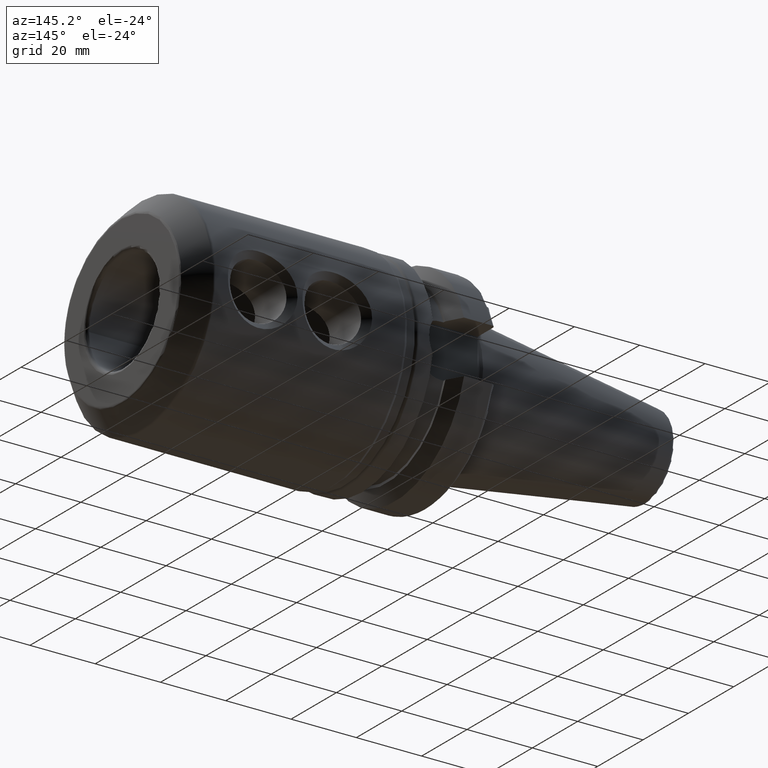
[diagram: clean part render]
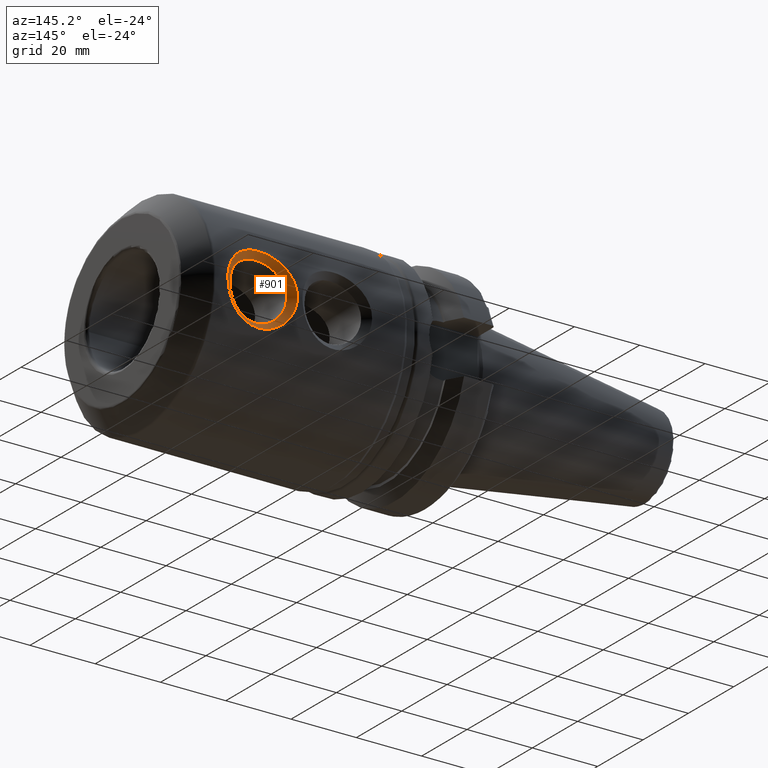
[diagram: same view with one face highlighted and labeled with its STEP entity id]
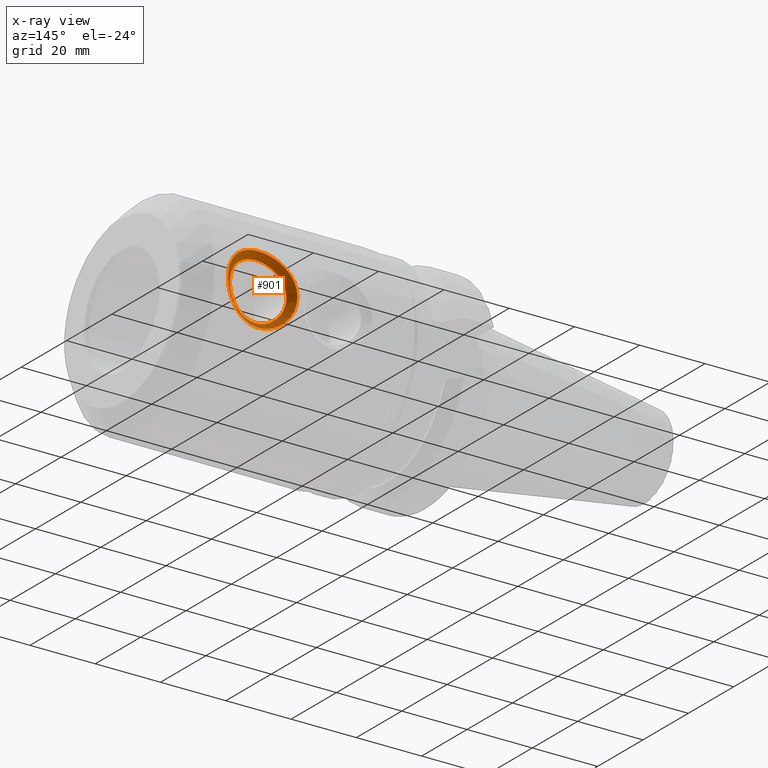
[diagram: x-ray of the same camera — body ghosted, the highlighted face saturated]
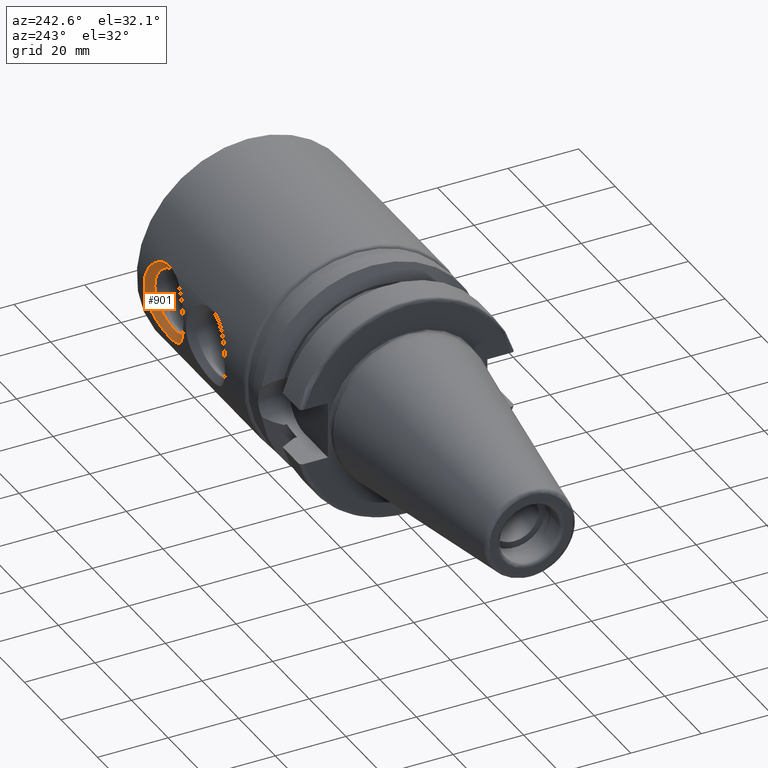
[diagram: same view with one face highlighted and labeled with its STEP entity id]
A machine part, auxiliary view. The second image highlights one B-rep face of the part: STEP entity #901.
The next image is the same camera in x-ray: the body ghosted, the highlighted face saturated — about 0% of this face is hidden behind the body in this view.
A second angle (auxiliary view) of the same face is appended — the face is thin or edge-on in the first view.
In plain terms, the highlighted face is a freeform B-spline surface patch.
Its self-contained STEP definition (entity closure, byte-faithful):
#19=B_SPLINE_SURFACE_WITH_KNOTS('',3,3,((#1586,#1587,#1588,#1589,#1590,
#1591,#1592,#1593,#1594,#1595,#1596,#1597,#1598,#1599,#1600,#1601,#1602,
#1603,#1604,#1605,#1606,#1607,#1608,#1609,#1610,#1611,#1612,#1613),(#1614,
#1615,#1616,#1617,#1618,#1619,#1620,#1621,#1622,#1623,#1624,#1625,#1626,
#1627,#1628,#1629,#1630,#1631,#1632,#1633,#1634,#1635,#1636,#1637,#1638,
#1639,#1640,#1641),(#1642,#1643,#1644,#1645,#1646,#1647,#1648,#1649,#1650,
#1651,#1652,#1653,#1654,#1655,#1656,#1657,#1658,#1659,#1660,#1661,#1662,
#1663,#1664,#1665,#1666,#1667,#1668,#1669),(#1670,#1671,#1672,#1673,#1674,
#1675,#1676,#1677,#1678,#1679,#1680,#1681,#1682,#1683,#1684,#1685,#1686,
#1687,#1688,#1689,#1690,#1691,#1692,#1693,#1694,#1695,#1696,#1697)),
 .UNSPECIFIED.,.F.,.T.,.F.,(4,4),(4,1,1,1,1,1,1,1,1,1,1,1,1,1,1,1,1,1,1,
1,1,1,1,1,1,4),(0.,1.),(3.93676515653178,4.12423016398568,4.31169517143957,
4.49916017889347,4.68662518634736,4.87409019380126,5.06155520125515,5.43648521616294,
5.6864385594348,5.81141523107073,5.93639190270666,6.18634524597852,6.43629858925038,
6.68625193252224,6.9362052757941,7.18615861906596,7.31113529070189,7.43611196233782,
7.68606530560967,7.8110419772456,7.93601864888153,8.18597199215339,8.43592533542525,
8.62339034287915,8.81085535033304,9.18578536524083),.UNSPECIFIED.);
#34=B_SPLINE_CURVE_WITH_KNOTS('',3,(#1485,#1486,#1487,#1488,#1489,#1490,
#1491,#1492,#1493,#1494,#1495,#1496,#1497,#1498,#1499,#1500,#1501,#1502,
#1503,#1504,#1505,#1506,#1507,#1508,#1509,#1510,#1511,#1512),
 .UNSPECIFIED.,.T.,.F.,(4,1,1,1,1,1,1,1,1,1,1,1,1,1,1,1,1,1,1,1,1,1,1,1,
1,4),(-9.18578536524083,-8.81085535033304,-8.62339034287915,-8.43592533542525,
-8.18597199215339,-7.93601864888153,-7.8110419772456,-7.68606530560967,
-7.43611196233782,-7.31113529070189,-7.18615861906596,-6.9362052757941,
-6.68625193252224,-6.43629858925038,-6.18634524597852,-5.93639190270666,
-5.81141523107073,-5.6864385594348,-5.43648521616294,-5.06155520125515,
-4.87409019380126,-4.68662518634736,-4.49916017889347,-4.31169517143957,
-4.12423016398568,-3.93676515653178),.UNSPECIFIED.);
#39=B_SPLINE_CURVE_WITH_KNOTS('',3,(#1700,#1701,#1702,#1703,#1704,#1705,
#1706,#1707,#1708,#1709,#1710,#1711,#1712,#1713,#1714,#1715,#1716,#1717,
#1718,#1719,#1720,#1721,#1722,#1723,#1724,#1725,#1726,#1727),
 .UNSPECIFIED.,.T.,.F.,(4,1,1,1,1,1,1,1,1,1,1,1,1,1,1,1,1,1,1,1,1,1,1,1,
1,4),(3.93676515653178,4.12423016398568,4.31169517143957,4.49916017889347,
4.68662518634736,4.87409019380126,5.06155520125515,5.43648521616294,5.6864385594348,
5.81141523107073,5.93639190270666,6.18634524597852,6.43629858925038,6.68625193252224,
6.9362052757941,7.18615861906596,7.31113529070189,7.43611196233782,7.68606530560967,
7.8110419772456,7.93601864888153,8.18597199215339,8.43592533542525,8.62339034287915,
8.81085535033304,9.18578536524083),.UNSPECIFIED.);
#57=LINE('',#1699,#105);
#105=VECTOR('',#1152,10.);
#203=FACE_OUTER_BOUND('',#263,.T.);
#263=EDGE_LOOP('',(#659,#660,#661,#662));
#395=VERTEX_POINT('',#1484);
#404=VERTEX_POINT('',#1698);
#491=EDGE_CURVE('',#395,#395,#34,.T.);
#502=EDGE_CURVE('',#395,#404,#57,.T.);
#503=EDGE_CURVE('',#404,#404,#39,.T.);
#659=ORIENTED_EDGE('',*,*,#502,.T.);
#660=ORIENTED_EDGE('',*,*,#503,.T.);
#661=ORIENTED_EDGE('',*,*,#502,.F.);
#662=ORIENTED_EDGE('',*,*,#491,.T.);
#901=ADVANCED_FACE('',(#203),#19,.T.);
#1152=DIRECTION('',(-0.70710678118655,-0.707106781186545,1.96261557335471E-16));
#1484=CARTESIAN_POINT('',(84.8114,31.75,-8.04911692853238E-15));
#1485=CARTESIAN_POINT('Ctrl Pts',(84.8114,31.75,-8.04911692853238E-15));
#1486=CARTESIAN_POINT('Ctrl Pts',(84.8114,31.75,-1.5383497898483));
#1487=CARTESIAN_POINT('Ctrl Pts',(84.2738683875392,31.5592539645426,-4.00498321800099));
#1488=CARTESIAN_POINT('Ctrl Pts',(82.5175796191609,31.0485550506107,-6.71534180940467));
#1489=CARTESIAN_POINT('Ctrl Pts',(80.7365421638912,30.6132210423268,-8.48403648482849));
#1490=CARTESIAN_POINT('Ctrl Pts',(78.1391702253356,30.1435285314447,-9.99746912291138));
#1491=CARTESIAN_POINT('Ctrl Pts',(75.4414277785882,29.934943035798,-10.5780694599135));
#1492=CARTESIAN_POINT('Ctrl Pts',(73.378604996851,29.9365305338845,-10.5770997198243));
#1493=CARTESIAN_POINT('Ctrl Pts',(71.2407388978673,30.0432382682293,-10.2720505035326));
#1494=CARTESIAN_POINT('Ctrl Pts',(69.1893814039093,30.3109968296817,-9.48130825117472));
#1495=CARTESIAN_POINT('Ctrl Pts',(67.4254672866939,30.6576267892473,-8.27819376322439));
#1496=CARTESIAN_POINT('Ctrl Pts',(65.9397991363431,31.0043987830482,-6.90798482558926));
#1497=CARTESIAN_POINT('Ctrl Pts',(64.4011692370581,31.4462311159559,-4.73008935272733));
#1498=CARTESIAN_POINT('Ctrl Pts',(63.4439062353922,31.7647591206404,-1.54565608218302));
#1499=CARTESIAN_POINT('Ctrl Pts',(63.4476735475459,31.7636428804468,1.54626333054899));
#1500=CARTESIAN_POINT('Ctrl Pts',(64.4029590733687,31.446052475511,4.72743427024879));
#1501=CARTESIAN_POINT('Ctrl Pts',(65.9394869988741,31.004283966259,6.90739063138147));
#1502=CARTESIAN_POINT('Ctrl Pts',(67.4289643525353,30.6574863707071,8.27647688387713));
#1503=CARTESIAN_POINT('Ctrl Pts',(69.1837794513928,30.3110030320463,9.48199951117648));
#1504=CARTESIAN_POINT('Ctrl Pts',(72.2973080188532,29.9090811351817,10.6597265106358));
#1505=CARTESIAN_POINT('Ctrl Pts',(75.7308451808855,29.9101718038395,10.657792338914));
#1506=CARTESIAN_POINT('Ctrl Pts',(78.86664453892,30.2703554112028,9.60434672038063));
#1507=CARTESIAN_POINT('Ctrl Pts',(80.9135555416707,30.6570928572666,8.3016742601942));
#1508=CARTESIAN_POINT('Ctrl Pts',(82.5185611604838,31.0492228345495,6.71825576785595));
#1509=CARTESIAN_POINT('Ctrl Pts',(83.8328344568679,31.430008776938,4.67869351488544));
#1510=CARTESIAN_POINT('Ctrl Pts',(84.6383760285669,31.6915566675994,2.36694324313765));
#1511=CARTESIAN_POINT('Ctrl Pts',(84.8114,31.75,0.769174894924189));
#1512=CARTESIAN_POINT('Ctrl Pts',(84.8114,31.75,-1.02695629777827E-14));
#1586=CARTESIAN_POINT('Ctrl Pts',(84.8114,31.75,-1.02695629777827E-14));
#1587=CARTESIAN_POINT('Ctrl Pts',(84.8114,31.75,0.769174894924189));
#1588=CARTESIAN_POINT('Ctrl Pts',(84.6383760285669,31.6915566675994,2.36694324313765));
#1589=CARTESIAN_POINT('Ctrl Pts',(83.8328344568679,31.430008776938,4.67869351488544));
#1590=CARTESIAN_POINT('Ctrl Pts',(82.5185611604838,31.0492228345495,6.71825576785595));
#1591=CARTESIAN_POINT('Ctrl Pts',(80.9135555416707,30.6570928572666,8.3016742601942));
#1592=CARTESIAN_POINT('Ctrl Pts',(78.86664453892,30.2703554112028,9.60434672038063));
#1593=CARTESIAN_POINT('Ctrl Pts',(75.7308451808855,29.9101718038395,10.657792338914));
#1594=CARTESIAN_POINT('Ctrl Pts',(72.2973080188532,29.9090811351817,10.6597265106358));
#1595=CARTESIAN_POINT('Ctrl Pts',(69.1837794513928,30.3110030320463,9.48199951117648));
#1596=CARTESIAN_POINT('Ctrl Pts',(67.4289643525353,30.6574863707071,8.27647688387713));
#1597=CARTESIAN_POINT('Ctrl Pts',(65.9394869988741,31.004283966259,6.90739063138147));
#1598=CARTESIAN_POINT('Ctrl Pts',(64.4029590733687,31.446052475511,4.72743427024879));
#1599=CARTESIAN_POINT('Ctrl Pts',(63.4476735475459,31.7636428804468,1.54626333054899));
#1600=CARTESIAN_POINT('Ctrl Pts',(63.4439062353922,31.7647591206404,-1.54565608218302));
#1601=CARTESIAN_POINT('Ctrl Pts',(64.4011692370581,31.4462311159559,-4.73008935272733));
#1602=CARTESIAN_POINT('Ctrl Pts',(65.9397991363431,31.0043987830482,-6.90798482558926));
#1603=CARTESIAN_POINT('Ctrl Pts',(67.4254672866939,30.6576267892473,-8.27819376322439));
#1604=CARTESIAN_POINT('Ctrl Pts',(69.1893814039093,30.3109968296817,-9.48130825117472));
#1605=CARTESIAN_POINT('Ctrl Pts',(71.2407388978673,30.0432382682293,-10.2720505035326));
#1606=CARTESIAN_POINT('Ctrl Pts',(73.378604996851,29.9365305338845,-10.5770997198243));
#1607=CARTESIAN_POINT('Ctrl Pts',(75.4414277785882,29.934943035798,-10.5780694599135));
#1608=CARTESIAN_POINT('Ctrl Pts',(78.1391702253356,30.1435285314447,-9.99746912291138));
#1609=CARTESIAN_POINT('Ctrl Pts',(80.7365421638912,30.6132210423268,-8.48403648482849));
#1610=CARTESIAN_POINT('Ctrl Pts',(82.5175796191609,31.0485550506107,-6.71534180940467));
#1611=CARTESIAN_POINT('Ctrl Pts',(84.2738683875392,31.5592539645426,-4.00498321800099));
#1612=CARTESIAN_POINT('Ctrl Pts',(84.8114,31.75,-1.5383497898483));
#1613=CARTESIAN_POINT('Ctrl Pts',(84.8114,31.75,-8.04911692853238E-15));
#1614=CARTESIAN_POINT('Ctrl Pts',(84.1447333333333,31.0833333333334,-1.00845258070118E-14));
#1615=CARTESIAN_POINT('Ctrl Pts',(84.1447333333333,31.0833333333334,0.707956805601368));
#1616=CARTESIAN_POINT('Ctrl Pts',(83.9883942413218,31.0323713840135,2.17855201008643));
#1617=CARTESIAN_POINT('Ctrl Pts',(83.256823204661,30.8033882512245,4.32043663035885));
#1618=CARTESIAN_POINT('Ctrl Pts',(82.0496657070479,30.4674369604962,6.23349834301946));
#1619=CARTESIAN_POINT('Ctrl Pts',(80.5581046526055,30.1188044984509,7.73880031063809));
#1620=CARTESIAN_POINT('Ctrl Pts',(78.6348388712366,29.7727201484243,8.99284882887373));
#1621=CARTESIAN_POINT('Ctrl Pts',(75.6603087820437,29.4484971840438,10.0198088811494));
#1622=CARTESIAN_POINT('Ctrl Pts',(72.3797801921218,29.4475095858937,10.0217992512211));
#1623=CARTESIAN_POINT('Ctrl Pts',(69.4292986489779,29.8092617973507,8.87388944043616));
#1624=CARTESIAN_POINT('Ctrl Pts',(67.7834589174233,30.1189255888886,7.71633770740853));
#1625=CARTESIAN_POINT('Ctrl Pts',(66.3959170190273,30.427642524645,6.41252803989445));
#1626=CARTESIAN_POINT('Ctrl Pts',(64.9833144016574,30.8177700832106,4.36242672937799));
#1627=CARTESIAN_POINT('Ctrl Pts',(64.1182062489856,31.0952547214389,1.42074787260935));
#1628=CARTESIAN_POINT('Ctrl Pts',(64.1147274718325,31.096251153999,-1.42024336071125));
#1629=CARTESIAN_POINT('Ctrl Pts',(64.981598321202,30.8179418554107,-4.36475670357426));
#1630=CARTESIAN_POINT('Ctrl Pts',(66.3962475491601,30.427736016145,-6.41311000528454));
#1631=CARTESIAN_POINT('Ctrl Pts',(67.7801464381194,30.1190523658519,-7.71789842207722));
#1632=CARTESIAN_POINT('Ctrl Pts',(69.4346748427099,29.8092320114092,-8.87333585273531));
#1633=CARTESIAN_POINT('Ctrl Pts',(71.378425974689,29.5683229606244,-9.64344454726984));
#1634=CARTESIAN_POINT('Ctrl Pts',(73.4145881465909,29.4721676550026,-9.94152028774405));
#1635=CARTESIAN_POINT('Ctrl Pts',(75.3811589895696,29.4706871538209,-9.94282006406423));
#1636=CARTESIAN_POINT('Ctrl Pts',(77.9490848204245,29.6588660865776,-9.37392857982431));
#1637=CARTESIAN_POINT('Ctrl Pts',(80.3938834831033,30.0798484898536,-7.91182545884092));
#1638=CARTESIAN_POINT('Ctrl Pts',(82.0488775680805,30.4668675412943,-6.23092919567436));
#1639=CARTESIAN_POINT('Ctrl Pts',(83.6615644188895,30.9173561014755,-3.68802493561491));
#1640=CARTESIAN_POINT('Ctrl Pts',(84.1447333333333,31.0833333333334,-1.4159136112027));
#1641=CARTESIAN_POINT('Ctrl Pts',(84.1447333333333,31.0833333333334,-8.14163551391781E-15));
#1642=CARTESIAN_POINT('Ctrl Pts',(83.4780666666666,30.4166666666667,-9.89948863624098E-15));
#1643=CARTESIAN_POINT('Ctrl Pts',(83.4780666666666,30.4166666666667,0.646738716278551));
#1644=CARTESIAN_POINT('Ctrl Pts',(83.3384124540766,30.3731861004276,1.99016077703521));
#1645=CARTESIAN_POINT('Ctrl Pts',(82.6808119524541,30.1767677255109,3.96217974583227));
#1646=CARTESIAN_POINT('Ctrl Pts',(81.5807702536121,29.8856510864429,5.74874091818296));
#1647=CARTESIAN_POINT('Ctrl Pts',(80.2026537635402,29.5805161396351,7.17592636108199));
#1648=CARTESIAN_POINT('Ctrl Pts',(78.4030332035532,29.2750848856458,8.38135093736683));
#1649=CARTESIAN_POINT('Ctrl Pts',(75.5897723832019,28.9868225642481,9.38182542338488));
#1650=CARTESIAN_POINT('Ctrl Pts',(72.4622523653904,28.9859380366058,9.38387199180638));
#1651=CARTESIAN_POINT('Ctrl Pts',(69.674817846563,29.3075205626551,8.26577936969585));
#1652=CARTESIAN_POINT('Ctrl Pts',(68.1379534823114,29.5803648070701,7.15619853093993));
#1653=CARTESIAN_POINT('Ctrl Pts',(66.8523470391804,29.8510010830311,5.91766544840742));
#1654=CARTESIAN_POINT('Ctrl Pts',(65.5636697299461,30.1894876909101,3.9974191885072));
#1655=CARTESIAN_POINT('Ctrl Pts',(64.7887389504254,30.426866562431,1.29523241466971));
#1656=CARTESIAN_POINT('Ctrl Pts',(64.7855487082728,30.4277431873576,-1.29483063923948));
#1657=CARTESIAN_POINT('Ctrl Pts',(65.5620274053459,30.1896525948654,-3.9994240544212));
#1658=CARTESIAN_POINT('Ctrl Pts',(66.852695961977,29.8510732492418,-5.91823518497981));
#1659=CARTESIAN_POINT('Ctrl Pts',(68.1348255895449,29.5804779424565,-7.15760308093006));
#1660=CARTESIAN_POINT('Ctrl Pts',(69.6799682815105,29.3074671931368,-8.26536345429589));
#1661=CARTESIAN_POINT('Ctrl Pts',(71.5161130515108,29.0934076530194,-9.01483859100712));
#1662=CARTESIAN_POINT('Ctrl Pts',(73.4505712963307,29.0078047761207,-9.30594085566382));
#1663=CARTESIAN_POINT('Ctrl Pts',(75.3208902005511,29.0064312718439,-9.307570668215));
#1664=CARTESIAN_POINT('Ctrl Pts',(77.7589994155134,29.1742036417105,-8.75038803673724));
#1665=CARTESIAN_POINT('Ctrl Pts',(80.0512248023153,29.5464759373803,-7.33961443285335));
#1666=CARTESIAN_POINT('Ctrl Pts',(81.580175517,29.8851800319779,-5.74651658194404));
#1667=CARTESIAN_POINT('Ctrl Pts',(83.0492604502398,30.2754582384085,-3.37106665322883));
#1668=CARTESIAN_POINT('Ctrl Pts',(83.4780666666666,30.4166666666667,-1.2934774325571));
#1669=CARTESIAN_POINT('Ctrl Pts',(83.4780666666666,30.4166666666667,-8.23415409930324E-15));
#1670=CARTESIAN_POINT('Ctrl Pts',(82.8114,29.75,-9.71445146547012E-15));
#1671=CARTESIAN_POINT('Ctrl Pts',(82.8114,29.75,0.585520626955731));
#1672=CARTESIAN_POINT('Ctrl Pts',(82.6884306668315,29.7140008168417,1.80176954398399));
#1673=CARTESIAN_POINT('Ctrl Pts',(82.1048007002472,29.5501471997974,3.60392286130568));
#1674=CARTESIAN_POINT('Ctrl Pts',(81.1118748001762,29.3038652123896,5.26398349334647));
#1675=CARTESIAN_POINT('Ctrl Pts',(79.847202874475,29.0422277808193,6.61305241152588));
#1676=CARTESIAN_POINT('Ctrl Pts',(78.1712275358697,28.7774496228673,7.76985304585994));
#1677=CARTESIAN_POINT('Ctrl Pts',(75.5192359843601,28.5251479444524,8.74384196562032));
#1678=CARTESIAN_POINT('Ctrl Pts',(72.544724538659,28.5243664873179,8.74594473239166));
#1679=CARTESIAN_POINT('Ctrl Pts',(69.9203370441481,28.8057793279594,7.65766929895553));
#1680=CARTESIAN_POINT('Ctrl Pts',(68.4924480471995,29.0418040252517,6.59605935447133));
#1681=CARTESIAN_POINT('Ctrl Pts',(67.3087770593335,29.2743596414171,5.4228028569204));
#1682=CARTESIAN_POINT('Ctrl Pts',(66.1440250582348,29.5612052986096,3.6324116476364));
#1683=CARTESIAN_POINT('Ctrl Pts',(65.4592716518651,29.7584784034231,1.16971695673007));
#1684=CARTESIAN_POINT('Ctrl Pts',(65.4563699447131,29.7592352207162,-1.16941791776771));
#1685=CARTESIAN_POINT('Ctrl Pts',(66.1424564894898,29.5613633343202,-3.63409140526814));
#1686=CARTESIAN_POINT('Ctrl Pts',(67.309144374794,29.2744104823387,-5.42336036467509));
#1687=CARTESIAN_POINT('Ctrl Pts',(68.4895047409703,29.0419035190611,-6.5973077397829));
#1688=CARTESIAN_POINT('Ctrl Pts',(69.9252617203111,28.8057023748643,-7.65739105585648));
#1689=CARTESIAN_POINT('Ctrl Pts',(71.6538001283325,28.6184923454145,-8.3862326347444));
#1690=CARTESIAN_POINT('Ctrl Pts',(73.4865544460706,28.5434418972389,-8.67036142358358));
#1691=CARTESIAN_POINT('Ctrl Pts',(75.2606214115325,28.5421753898669,-8.67232127236576));
#1692=CARTESIAN_POINT('Ctrl Pts',(77.5689140106022,28.6895411968435,-8.12684749365017));
#1693=CARTESIAN_POINT('Ctrl Pts',(79.7085661215274,29.0131033849071,-6.76740340686578));
#1694=CARTESIAN_POINT('Ctrl Pts',(81.1114734659195,29.3034925226615,-5.26210396821373));
#1695=CARTESIAN_POINT('Ctrl Pts',(82.43695648159,29.6335603753414,-3.05410837084275));
#1696=CARTESIAN_POINT('Ctrl Pts',(82.8114,29.75,-1.1710412539115));
#1697=CARTESIAN_POINT('Ctrl Pts',(82.8114,29.75,-8.32667268468867E-15));
#1698=CARTESIAN_POINT('',(82.8114,29.75,-9.71445146547012E-15));
#1699=CARTESIAN_POINT('',(84.8114,31.75,-1.02695629777827E-14));
#1700=CARTESIAN_POINT('Ctrl Pts',(82.8114,29.75,-9.71445146547012E-15));
#1701=CARTESIAN_POINT('Ctrl Pts',(82.8114,29.75,0.585520626955731));
#1702=CARTESIAN_POINT('Ctrl Pts',(82.6884306668315,29.7140008168417,1.80176954398399));
#1703=CARTESIAN_POINT('Ctrl Pts',(82.1048007002472,29.5501471997974,3.60392286130568));
#1704=CARTESIAN_POINT('Ctrl Pts',(81.1118748001762,29.3038652123896,5.26398349334647));
#1705=CARTESIAN_POINT('Ctrl Pts',(79.847202874475,29.0422277808193,6.61305241152588));
#1706=CARTESIAN_POINT('Ctrl Pts',(78.1712275358697,28.7774496228673,7.76985304585994));
#1707=CARTESIAN_POINT('Ctrl Pts',(75.5192359843601,28.5251479444524,8.74384196562032));
#1708=CARTESIAN_POINT('Ctrl Pts',(72.544724538659,28.5243664873179,8.74594473239166));
#1709=CARTESIAN_POINT('Ctrl Pts',(69.9203370441481,28.8057793279594,7.65766929895553));
#1710=CARTESIAN_POINT('Ctrl Pts',(68.4924480471995,29.0418040252517,6.59605935447133));
#1711=CARTESIAN_POINT('Ctrl Pts',(67.3087770593335,29.2743596414171,5.4228028569204));
#1712=CARTESIAN_POINT('Ctrl Pts',(66.1440250582348,29.5612052986096,3.6324116476364));
#1713=CARTESIAN_POINT('Ctrl Pts',(65.4592716518651,29.7584784034231,1.16971695673007));
#1714=CARTESIAN_POINT('Ctrl Pts',(65.4563699447131,29.7592352207162,-1.16941791776771));
#1715=CARTESIAN_POINT('Ctrl Pts',(66.1424564894898,29.5613633343202,-3.63409140526814));
#1716=CARTESIAN_POINT('Ctrl Pts',(67.309144374794,29.2744104823387,-5.42336036467509));
#1717=CARTESIAN_POINT('Ctrl Pts',(68.4895047409703,29.0419035190611,-6.5973077397829));
#1718=CARTESIAN_POINT('Ctrl Pts',(69.9252617203111,28.8057023748643,-7.65739105585648));
#1719=CARTESIAN_POINT('Ctrl Pts',(71.6538001283325,28.6184923454145,-8.3862326347444));
#1720=CARTESIAN_POINT('Ctrl Pts',(73.4865544460706,28.5434418972389,-8.67036142358358));
#1721=CARTESIAN_POINT('Ctrl Pts',(75.2606214115325,28.5421753898669,-8.67232127236576));
#1722=CARTESIAN_POINT('Ctrl Pts',(77.5689140106022,28.6895411968435,-8.12684749365017));
#1723=CARTESIAN_POINT('Ctrl Pts',(79.7085661215274,29.0131033849071,-6.76740340686578));
#1724=CARTESIAN_POINT('Ctrl Pts',(81.1114734659195,29.3034925226615,-5.26210396821373));
#1725=CARTESIAN_POINT('Ctrl Pts',(82.43695648159,29.6335603753414,-3.05410837084275));
#1726=CARTESIAN_POINT('Ctrl Pts',(82.8114,29.75,-1.1710412539115));
#1727=CARTESIAN_POINT('Ctrl Pts',(82.8114,29.75,-8.32667268468867E-15));